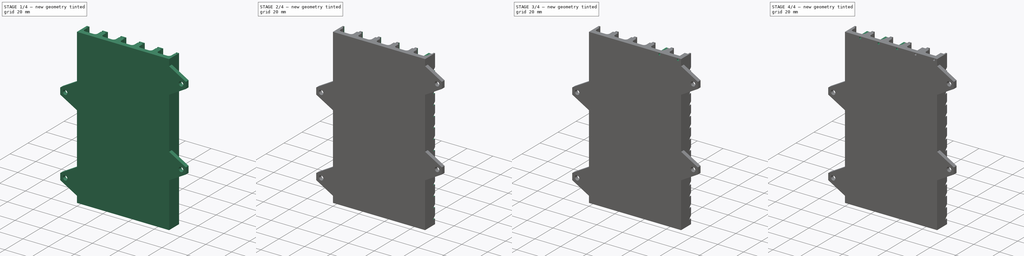
[diagram: build sequence overview — one tinted view per stage of 4, left to right]
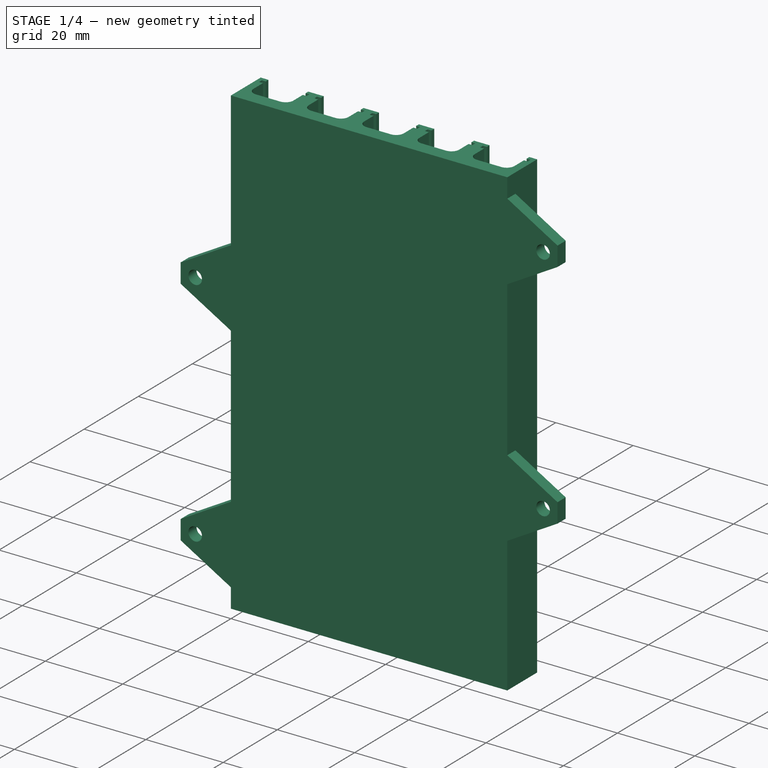
[diagram: stage 1 of 4 — iso view after this stage's code; geometry added in this stage tinted green]
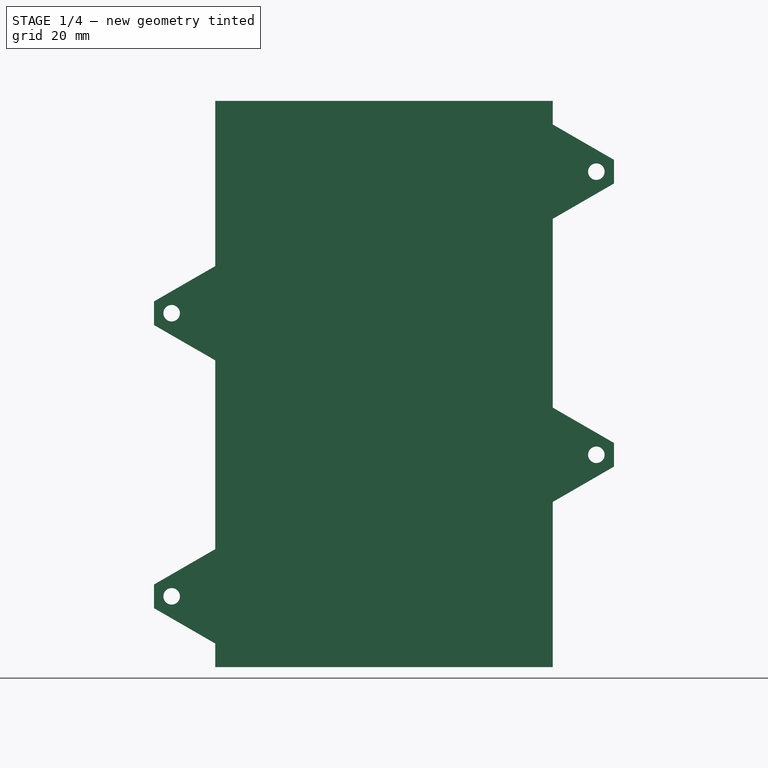
[diagram: stage 1 of 4 — front view after this stage's code; geometry added in this stage tinted green]
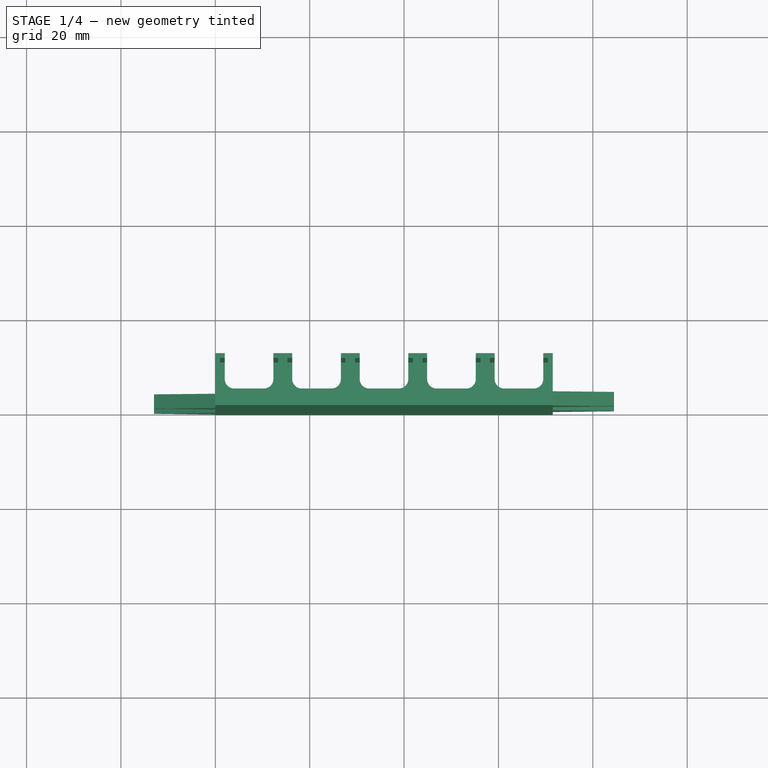
[diagram: stage 1 of 4 — top view after this stage's code; geometry added in this stage tinted green]
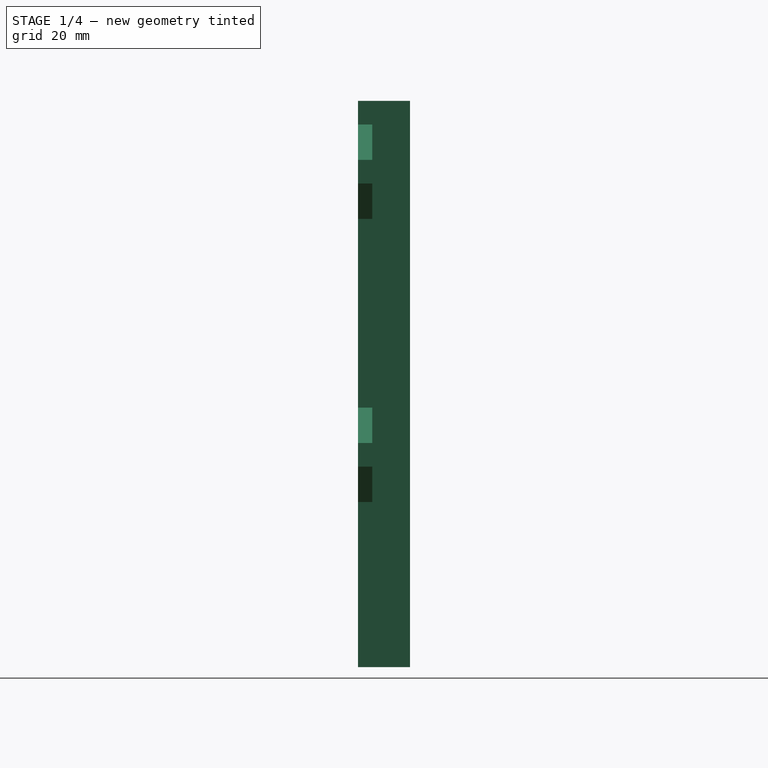
[diagram: stage 1 of 4 — right view after this stage's code; geometry added in this stage tinted green]
FCSTD DOCUMENT  (FreeCAD 0.19R24291 (Git))
Label: 12mm-strip-feeder
License: All rights reserved
LicenseURL: http://en.wikipedia.org/wiki/All_rights_reserved
objects: Sketcher::SketchObject×5, PartDesign::MultiTransform×5, PartDesign::LinearPattern×4, PartDesign::Pad×3, PartDesign::Plane×3, PartDesign::Pocket×2, PartDesign::Chamfer×2, PartDesign::Fillet×1, Part::Part2DObjectPython×1, PartDesign::Body×1
note: 35 computed .brp shape members not serialized (recipe doc carries the construction recipe); baked Part::Feature solids carry a one-line shape summary decoded from their .brp

FEATURE [Sketcher::SketchObject] Sketch
  FullyConstrained = true
  MapMode = 5
  Support = -> [XY_Plane]
  sketch-geometry (64):
    g0: LineSegment StartX=0 StartY=0 StartZ=0 EndX=71.5 EndY=0 EndZ=0
    g1: LineSegment StartX=16.3 StartY=11 StartZ=0 EndX=12.3 EndY=11 EndZ=0
    g2: LineSegment StartX=12.3 StartY=11 StartZ=0 EndX=12.3 EndY=10 EndZ=0
    g3: LineSegment StartX=12.3 StartY=10 StartZ=0 EndX=13.3 EndY=10 EndZ=0
    g4: LineSegment StartX=13.3 StartY=10 StartZ=0 EndX=13.3 EndY=9 EndZ=0
    g5: LineSegment StartX=13.3 StartY=9 StartZ=0 EndX=12.3 EndY=9 EndZ=0
    g6: LineSegment StartX=12.3 StartY=9 StartZ=0 EndX=12.3 EndY=3.5 EndZ=0
    g7: LineSegment StartX=12.3 StartY=3.5 StartZ=0 EndX=2 EndY=3.5 EndZ=0
    g8: LineSegment StartX=2 StartY=3.5 StartZ=0 EndX=2 EndY=9 EndZ=0
    g9: LineSegment StartX=2 StartY=9 StartZ=0 EndX=1 EndY=9 EndZ=0
    g10: LineSegment StartX=1 StartY=9 StartZ=0 EndX=1 EndY=10 EndZ=0
    g11: LineSegment StartX=1 StartY=10 StartZ=0 EndX=2 EndY=10 EndZ=0
    g12: LineSegment StartX=2 StartY=10 StartZ=0 EndX=2 EndY=11 EndZ=0
    g13: LineSegment StartX=2 StartY=11 StartZ=0 EndX=0 EndY=11 EndZ=0
    g14: LineSegment StartX=0 StartY=11 StartZ=0 EndX=0 EndY=0 EndZ=0
    g15: LineSegment StartX=26.6 StartY=11 StartZ=0 EndX=26.6 EndY=10 EndZ=0
    g16: LineSegment StartX=26.6 StartY=10 StartZ=0 EndX=27.6 EndY=10 EndZ=0
    g17: LineSegment StartX=27.6 StartY=10 StartZ=0 EndX=27.6 EndY=9 EndZ=0
    g18: LineSegment StartX=27.6 StartY=9 StartZ=0 EndX=26.6 EndY=9 EndZ=0
    g19: LineSegment StartX=26.6 StartY=9 StartZ=0 EndX=26.6 EndY=3.5 EndZ=0
    g20: LineSegment StartX=26.6 StartY=3.5 StartZ=0 EndX=16.3 EndY=3.5 EndZ=0
    g21: LineSegment StartX=16.3 StartY=3.5 StartZ=0 EndX=16.3 EndY=9 EndZ=0
    g22: LineSegment StartX=16.3 StartY=9 StartZ=0 EndX=15.3 EndY=9 EndZ=0
    g23: LineSegment StartX=15.3 StartY=9 StartZ=0 EndX=15.3 EndY=10 EndZ=0
    g24: LineSegment StartX=15.3 StartY=10 StartZ=0 EndX=16.3 EndY=10 EndZ=0
    g25: LineSegment StartX=16.3 StartY=10 StartZ=0 EndX=16.3 EndY=11 EndZ=0
    g26: LineSegment StartX=44.9 StartY=11 StartZ=0 EndX=40.9 EndY=11 EndZ=0
    g27: LineSegment StartX=40.9 StartY=11 StartZ=0 EndX=40.9 EndY=10 EndZ=0
    g28: LineSegment StartX=40.9 StartY=10 StartZ=0 EndX=41.9 EndY=10 EndZ=0
    g29: LineSegment StartX=41.9 StartY=10 StartZ=0 EndX=41.9 EndY=9 EndZ=0
    g30: LineSegment StartX=41.9 StartY=9 StartZ=0 EndX=40.9 EndY=9 EndZ=0
    g31: LineSegment StartX=40.9 StartY=9 StartZ=0 EndX=40.9 EndY=3.5 EndZ=0
    g32: LineSegment StartX=44.9 StartY=3.5 StartZ=0 EndX=44.9 EndY=9 EndZ=0
    g33: LineSegment StartX=44.9 StartY=9 StartZ=0 EndX=43.9 EndY=9 EndZ=0
    g34: LineSegment StartX=43.9 StartY=9 StartZ=0 EndX=43.9 EndY=10 EndZ=0
    g35: LineSegment StartX=43.9 StartY=10 StartZ=0 EndX=44.9 EndY=10 EndZ=0
    g36: LineSegment StartX=44.9 StartY=10 StartZ=0 EndX=44.9 EndY=11 EndZ=0
    g37: LineSegment StartX=30.6 StartY=3.5 StartZ=0 EndX=30.6 EndY=9 EndZ=0
    g38: LineSegment StartX=30.6 StartY=9 StartZ=0 EndX=29.6 EndY=9 EndZ=0
    g39: LineSegment StartX=29.6 StartY=9 StartZ=0 EndX=29.6 EndY=10 EndZ=0
    g40: LineSegment StartX=29.6 StartY=10 StartZ=0 EndX=30.6 EndY=10 EndZ=0
    g41: LineSegment StartX=30.6 StartY=10 StartZ=0 EndX=30.6 EndY=11 EndZ=0
    g42: LineSegment StartX=26.6 StartY=11 StartZ=0 EndX=30.6 EndY=11 EndZ=0
    g43: LineSegment StartX=30.6 StartY=3.5 StartZ=0 EndX=40.9 EndY=3.5 EndZ=0
    g44: LineSegment StartX=55.2 StartY=11 StartZ=0 EndX=55.2 EndY=10 EndZ=0
    g45: LineSegment StartX=55.2 StartY=10 StartZ=0 EndX=56.2 EndY=10 EndZ=0
    g46: LineSegment StartX=56.2 StartY=10 StartZ=0 EndX=56.2 EndY=9 EndZ=0
    g47: LineSegment StartX=56.2 StartY=9 StartZ=0 EndX=55.2 EndY=9 EndZ=0
    g48: LineSegment StartX=55.2 StartY=9 StartZ=0 EndX=55.2 EndY=3.5 EndZ=0
    g49: LineSegment StartX=44.9 StartY=3.5 StartZ=0 EndX=55.2 EndY=3.5 EndZ=0
    g50: LineSegment StartX=55.2 StartY=11 StartZ=0 EndX=59.2 EndY=11 EndZ=0
    g51: LineSegment StartX=59.2 StartY=3.5 StartZ=0 EndX=59.2 EndY=9 EndZ=0
    g52: LineSegment StartX=59.2 StartY=9 StartZ=0 EndX=58.2 EndY=9 EndZ=0
    g53: LineSegment StartX=58.2 StartY=9 StartZ=0 EndX=58.2 EndY=10 EndZ=0
    g54: LineSegment StartX=58.2 StartY=10 StartZ=0 EndX=59.2 EndY=10 EndZ=0
    g55: LineSegment StartX=59.2 StartY=10 StartZ=0 EndX=59.2 EndY=11 EndZ=0
    g56: LineSegment StartX=69.5 StartY=11 StartZ=0 EndX=69.5 EndY=10 EndZ=0
    g57: LineSegment StartX=69.5 StartY=9 StartZ=0 EndX=69.5 EndY=3.5 EndZ=0
    g58: LineSegment StartX=59.2 StartY=3.5 StartZ=0 EndX=69.5 EndY=3.5 EndZ=0
    g59: LineSegment StartX=69.5 StartY=11 StartZ=0 EndX=71.5 EndY=11 EndZ=0
    g60: LineSegment StartX=69.5 StartY=10 StartZ=0 EndX=70.5 EndY=10 EndZ=0
    g61: LineSegment StartX=70.5 StartY=10 StartZ=0 EndX=70.5 EndY=9 EndZ=0
    g62: LineSegment StartX=70.5 StartY=9 StartZ=0 EndX=69.5 EndY=9 EndZ=0
    g63: LineSegment StartX=71.5 StartY=11 StartZ=0 EndX=71.5 EndY=0 EndZ=0
  constraints (191):
    c: Coincident(g-1,g0)
    c: PointOnObject(g0,g-1)
    c: Horizontal(g1)
    c: Vertical(g2)
    c: Coincident(g2,g3)
    c: Horizontal(g3)
    c: Coincident(g3,g4)
    c: Vertical(g4)
    c: Coincident(g4,g5)
    c: Horizontal(g5)
    c: Coincident(g5,g6)
    c: Vertical(g6)
    c: Coincident(g6,g7)
    c: Horizontal(g7)
    c: Coincident(g7,g8)
    c: Vertical(g8)
    c: Coincident(g8,g9)
    c: Horizontal(g9)
    c: Coincident(g9,g10)
    c: Vertical(g10)
    c: Coincident(g10,g11)
    c: Coincident(g11,g12)
    c: Vertical(g12)
    c: Coincident(g12,g13)
    c: PointOnObject(g13,g-2)
    c: Horizontal(g13)
    c: Coincident(g13,g14)
    c: Coincident(g14,g0)
    c: Horizontal(g11)
    c: DistanceY(g0,g10) = 10
    c: DistanceY(g0,g13) = 11
    c: PointOnObject(g1,g13)
    c: PointOnObject(g2,g11)
    c: DistanceY(g10,g10) = 1
    c: PointOnObject(g5,g9)
    c: PointOnObject(g11,g8)
    c: PointOnObject(g2,g6)
    c: DistanceX(g10,g12) = 1
    c: DistanceY(g7,g11) = 6.5
    c: DistanceX(g9,g4) = 12.3
    c: DistanceX(g5,g5) = 1
    c: DistanceX(g13,g13) = 2
    c: Vertical(g15)
    c: Coincident(g15,g16)
    c: Horizontal(g16)
    c: Coincident(g16,g17)
    c: Vertical(g17)
    c: Coincident(g17,g18)
    c: Horizontal(g18)
    c: Coincident(g18,g19)
    c: Vertical(g19)
    c: Coincident(g19,g20)
    c: Horizontal(g20)
    c: Coincident(g20,g21)
    c: Vertical(g21)
    c: Coincident(g21,g22)
    c: Horizontal(g22)
    c: Coincident(g22,g23)
    c: Vertical(g23)
    c: Coincident(g23,g24)
    c: Coincident(g24,g25)
    c: Vertical(g25)
    c: Horizontal(g24)
    c: PointOnObject(g15,g24)
    c: Equal(g10,g23) = 1
    c: PointOnObject(g18,g22)
    c: PointOnObject(g24,g21)
    c: PointOnObject(g15,g19)
    c: DistanceX(g23,g25) = 1
    c: DistanceY(g20,g24) = 6.5
    c: DistanceX(g22,g17) = 12.3
    c: Equal(g5,g18) = 1
    c: Coincident(g1,g2)
    c: Coincident(g1,g25)
    c: PointOnObject(g23,g3)
    c: PointOnObject(g15,g1)
    c: DistanceX(g1,g1) = 4
    c: Horizontal(g26)
    c: Vertical(g27)
    c: Coincident(g27,g28)
    c: Horizontal(g28)
    c: Coincident(g28,g29)
    c: Vertical(g29)
    c: Coincident(g29,g30)
    c: Horizontal(g30)
    c: Coincident(g30,g31)
    c: Vertical(g31)
    c: PointOnObject(g27,g31)
    c: Equal(g5,g30) = 1
    c: Vertical(g32)
    c: Coincident(g32,g33)
    c: Horizontal(g33)
    c: Coincident(g33,g34)
    c: Vertical(g34)
    c: Coincident(g34,g35)
    c: Coincident(g35,g36)
    c: Vertical(g36)
    c: Horizontal(g35)
    c: PointOnObject(g35,g32)
    c: DistanceX(g34,g36) = 1
    c: Coincident(g26,g27)
    c: Coincident(g26,g36)
    c: PointOnObject(g34,g28)
    c: Equal(g1,g26) = 4
    c: Vertical(g37)
    c: Coincident(g37,g38)
    c: Horizontal(g38)
    c: Coincident(g38,g39)
    c: Vertical(g39)
    c: Coincident(g39,g40)
    c: Coincident(g40,g41)
    c: Vertical(g41)
    c: Horizontal(g40)
    c: PointOnObject(g40,g37)
    c: DistanceX(g39,g41) = 1
    c: Coincident(g42,g15)
    c: Coincident(g42,g41)
    c: Horizontal(g42)
    c: Coincident(g43,g37)
    c: Coincident(g43,g31)
    c: Horizontal(g43)
    c: PointOnObject(g37,g20)
    c: PointOnObject(g38,g18)
    c: PointOnObject(g39,g16)
    c: PointOnObject(g30,g38)
    c: PointOnObject(g27,g40)
    c: DistanceX(g39,g28) = 12.3
    c: DistanceX(g42,g42) = 4
    c: Vertical(g44)
    c: Coincident(g44,g45)
    c: Horizontal(g45)
    c: Coincident(g45,g46)
    c: Vertical(g46)
    c: Coincident(g46,g47)
    c: Horizontal(g47)
    c: Coincident(g47,g48)
    c: Vertical(g48)
    c: PointOnObject(g44,g48)
    c: Coincident(g49,g32)
    c: Coincident(g49,g48)
    c: Coincident(g50,g44)
    c: Horizontal(g50)
    c: Horizontal(g49)
    c: PointOnObject(g32,g43)
    c: PointOnObject(g33,g30)
    c: PointOnObject(g47,g33)
    c: PointOnObject(g44,g35)
    c: PointOnObject(g44,g26)
    c: PointOnObject(g26,g42)
    c: DistanceX(g34,g45) = 12.3
    c: DistanceX(g45,g45) = 1
    c: Vertical(g51)
    c: Coincident(g51,g52)
    c: Horizontal(g52)
    c: Coincident(g52,g53)
    c: Vertical(g53)
    c: Coincident(g53,g54)
    c: Coincident(g54,g55)
    c: Vertical(g55)
    c: Horizontal(g54)
    c: PointOnObject(g54,g51)
    c: DistanceX(g53,g55) = 1
    c: Vertical(g56)
    c: Vertical(g57)
    c: PointOnObject(g56,g57)
    c: Coincident(g58,g51)
    c: Coincident(g58,g57)
    c: Coincident(g59,g56)
    c: Horizontal(g59)
    c: Horizontal(g58)
    c: PointOnObject(g57,g52)
    c: PointOnObject(g56,g54)
    c: PointOnObject(g53,g45)
    c: PointOnObject(g52,g47)
    c: PointOnObject(g51,g49)
    c: Coincident(g50,g55)
    c: DistanceX(g50,g50) = 4
    c: PointOnObject(g56,g50)
    c: Coincident(g56,g60)
    c: Horizontal(g60)
    c: Coincident(g60,g61)
    c: Vertical(g61)
    c: Coincident(g61,g62)
    c: Coincident(g62,g57)
    c: Horizontal(g62)
    c: DistanceX(g53,g60) = 12.3
    c: DistanceX(g60,g60) = 1
    c: Coincident(g63,g59)
    c: Coincident(g63,g0)
    c: Vertical(g63)
    c: DistanceX(g59,g59) = 2
FEATURE [PartDesign::Pad] Pad
  Direction = (1,1,1)
  Length = 120
  Length2 = 100
  Profile = -> Sketch
  Type = 0
FEATURE [Sketcher::SketchObject] Sketch001
  FullyConstrained = true
  MapMode = 5
  Placement = pos=(0,0,0) rot=(1,0,0;1.5708rad)
  Support = -> [XZ_Plane]
  sketch-geometry (28):
    g0: Circle CenterX=-9.25 CenterY=15 CenterZ=0 NormalX=0 NormalY=0 NormalZ=1 AngleXU=0 Radius=1.75
    g1: Circle CenterX=-9.25 CenterY=75 CenterZ=0 NormalX=0 NormalY=0 NormalZ=1 AngleXU=0 Radius=1.75
    g2: Circle CenterX=80.75 CenterY=105 CenterZ=0 NormalX=0 NormalY=0 NormalZ=1 AngleXU=0 Radius=1.75
    g3: Circle CenterX=80.75 CenterY=45 CenterZ=0 NormalX=0 NormalY=0 NormalZ=1 AngleXU=0 Radius=1.75
    g4: LineSegment StartX=-9.25 StartY=75 StartZ=0 EndX=80.75 EndY=75 EndZ=0
    g5: LineSegment StartX=80.75 StartY=75 StartZ=0 EndX=80.75 EndY=15 EndZ=0
    g6: LineSegment StartX=80.75 StartY=15 StartZ=0 EndX=-9.25 EndY=15 EndZ=0
    g7: LineSegment StartX=-9.25 StartY=15 StartZ=0 EndX=-9.25 EndY=75 EndZ=0
    g8: LineSegment StartX=0 StartY=4.99445 StartZ=0 EndX=-13 EndY=12.5 EndZ=0
    g9: LineSegment StartX=-13 StartY=12.5 StartZ=0 EndX=-13 EndY=17.5 EndZ=0
    g10: LineSegment StartX=-13 StartY=17.5 StartZ=0 EndX=0 EndY=25.0056 EndZ=0
    g11: LineSegment StartX=0 StartY=25.0056 StartZ=0 EndX=0 EndY=4.99445 EndZ=0
    g12: LineSegment StartX=0 StartY=65.0056 StartZ=0 EndX=-13 EndY=72.5 EndZ=0
    g13: LineSegment StartX=-13 StartY=72.5 StartZ=0 EndX=-13 EndY=77.5 EndZ=0
    g14: LineSegment StartX=-13 StartY=77.5 StartZ=0 EndX=0 EndY=84.9944 EndZ=0
    g15: LineSegment StartX=0 StartY=84.9944 StartZ=0 EndX=0 EndY=65.0056 EndZ=0
    g16: LineSegment StartX=71.5 StartY=34.9944 StartZ=0 EndX=84.5 EndY=42.5 EndZ=0
    g17: LineSegment StartX=84.5 StartY=42.5 StartZ=0 EndX=84.5 EndY=47.5 EndZ=0
    g18: LineSegment StartX=84.5 StartY=47.5 StartZ=0 EndX=71.5 EndY=55.0056 EndZ=0
    g19: LineSegment StartX=71.5 StartY=55.0056 StartZ=0 EndX=71.5 EndY=34.9944 EndZ=0
    g20: LineSegment StartX=71.5 StartY=94.9944 StartZ=0 EndX=84.5 EndY=102.5 EndZ=0
    g21: LineSegment StartX=84.5 StartY=102.5 StartZ=0 EndX=84.5 EndY=107.5 EndZ=0
    g22: LineSegment StartX=84.5 StartY=107.5 StartZ=0 EndX=71.5 EndY=115.006 EndZ=0
    g23: LineSegment StartX=71.5 StartY=115.006 StartZ=0 EndX=71.5 EndY=94.9944 EndZ=0
    g24: LineSegment StartX=-9.25 StartY=45 StartZ=0 EndX=80.75 EndY=45 EndZ=0
    g25: LineSegment StartX=80.75 StartY=45 StartZ=0 EndX=80.75 EndY=105 EndZ=0
    g26: LineSegment StartX=80.75 StartY=105 StartZ=0 EndX=-9.25 EndY=105 EndZ=0
    g27: LineSegment StartX=-9.25 StartY=105 StartZ=0 EndX=-9.25 EndY=45 EndZ=0
  constraints (79):
    c: Diameter(g2) = 3.5
    c: Diameter(g1) = 3.5
    c: Diameter(g0) = 3.5
    c: Diameter(g3) = 3.5
    c: Horizontal(g4)
    c: Horizontal(g6)
    c: Vertical(g5)
    c: Vertical(g7)
    c: DistanceX(g4,g4) = 90
    c: DistanceY(g7,g7) = 60
    c: Coincident(g1,g4)
    c: Coincident(g1,g7)
    c: Coincident(g7,g6)
    c: Coincident(g0,g6)
    c: DistanceX(g0,g-1) = 9.25
    c: DistanceY(g-1,g0) = 15
    c: Coincident(g8,g9)
    c: Coincident(g9,g10)
    c: Coincident(g10,g11)
    c: Coincident(g11,g8)
    c: Vertical(g11)
    c: Angle(g10,g11) = 1.0472
    c: Angle(g11,g8) = 1.0472
    c: DistanceX(g8,g8) = 13
    c: DistanceY(g9,g9) = 5
    c: PointOnObject(g12,g-2)
    c: Coincident(g12,g13)
    c: Vertical(g13)
    c: Coincident(g13,g14)
    c: PointOnObject(g14,g-2)
    c: Coincident(g14,g15)
    c: Coincident(g15,g12)
    c: DistanceY(g13,g13) = 5
    c: DistanceX(g13,g14) = 13
    c: DistanceY(g8,g14) = 80
    c: Coincident(g16,g17)
    c: Vertical(g17)
    c: Coincident(g17,g18)
    c: Coincident(g18,g19)
    c: Coincident(g19,g16)
    c: Vertical(g19)
    c: Coincident(g20,g21)
    c: Vertical(g21)
    c: Coincident(g21,g22)
    c: Coincident(g22,g23)
    c: Coincident(g23,g20)
    c: Vertical(g23)
    c: DistanceX(g20,g2) = 9.25
    c: DistanceX(g20,g20) = 13
    c: DistanceX(g18,g3) = 9.25
    c: DistanceY(g21,g21) = 5
    c: DistanceY(g16,g3) = 2.5
    c: DistanceY(g20,g2) = 2.5
    c: Angle(g16,g19) = 1.0472
    c: Angle(g19,g18) = 1.0472
    c: DistanceY(g17,g17) = 5
    c: DistanceX(g18,g17) = 13
    c: Equal(g14,g12)
    c: DistanceY(g1,g13) = 2.5
    c: Angle(g23,g22) = 1.0472
    c: Angle(g20,g23) = 1.0472
    c: Coincident(g24,g25)
    c: Coincident(g25,g26)
    c: Coincident(g26,g27)
    c: Coincident(g27,g24)
    c: Horizontal(g24)
    c: Horizontal(g26)
    c: Vertical(g25)
    c: Vertical(g27)
    c: PointOnObject(g24,g7)
    c: DistanceY(g27,g27) = 60
    c: DistanceY(g24,g1) = 30
    c: PointOnObject(g24,g5)
    c: Coincident(g5,g6)
    c: Coincident(g3,g24)
    c: Coincident(g2,g25)
    c: Coincident(g4,g5)
    c: PointOnObject(g8,g-2)
    c: Symmetric(g9,g8,g6)
FEATURE [PartDesign::Pad] Pad001
  BaseFeature = -> Pad
  Direction = (1,1,1)
  Length = 3
  Length2 = 100
  Profile = -> Sketch001
  Reversed = true
  Type = 0
FEATURE [PartDesign::Fillet] Fillet
  Base = -> Pad001 [Edge149,Edge137,Edge209,Edge197,Edge185,Edge148,Edge136,Edge208,Edge196,Edge184]
  BaseFeature = -> Pad001
  Radius = 2
  SupportTransform = false
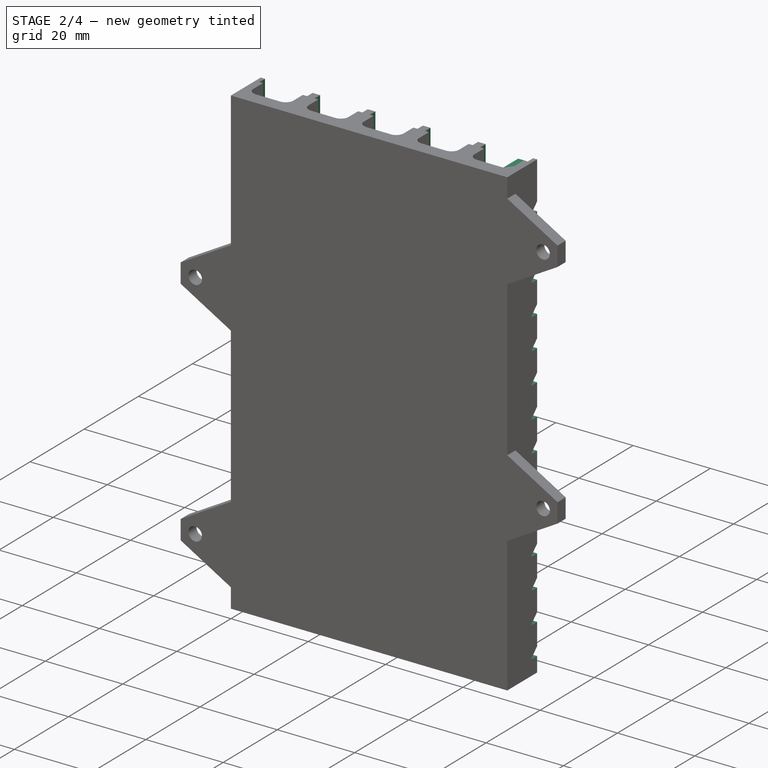
[diagram: stage 2 of 4 — iso view after this stage's code; geometry added in this stage tinted green]
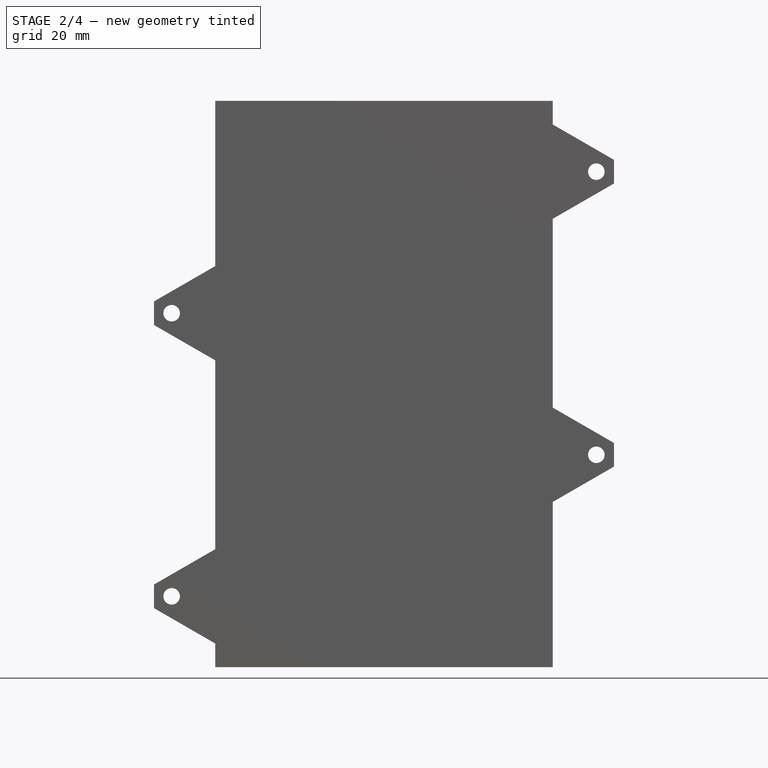
[diagram: stage 2 of 4 — front view after this stage's code; geometry added in this stage tinted green]
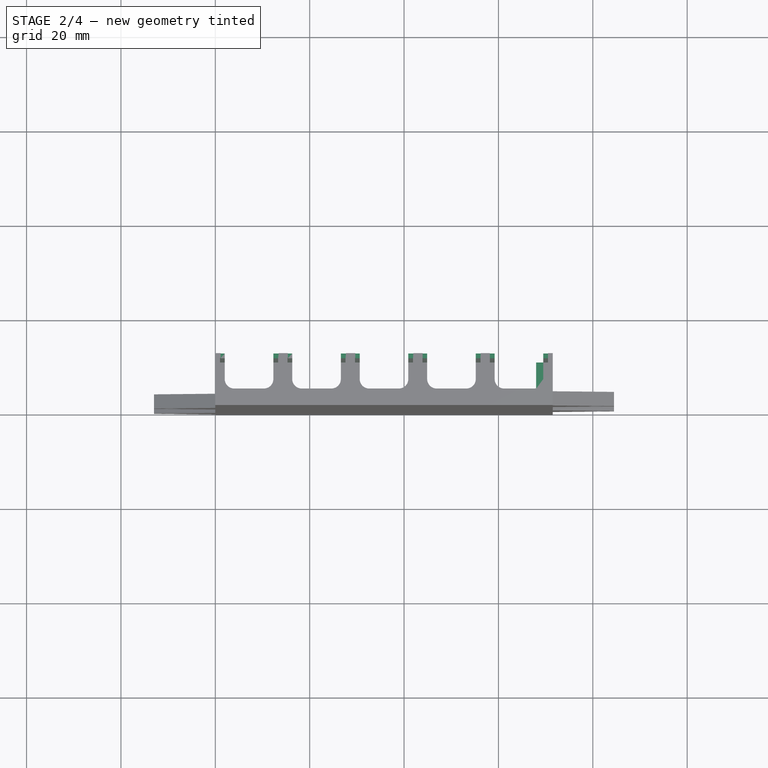
[diagram: stage 2 of 4 — top view after this stage's code; geometry added in this stage tinted green]
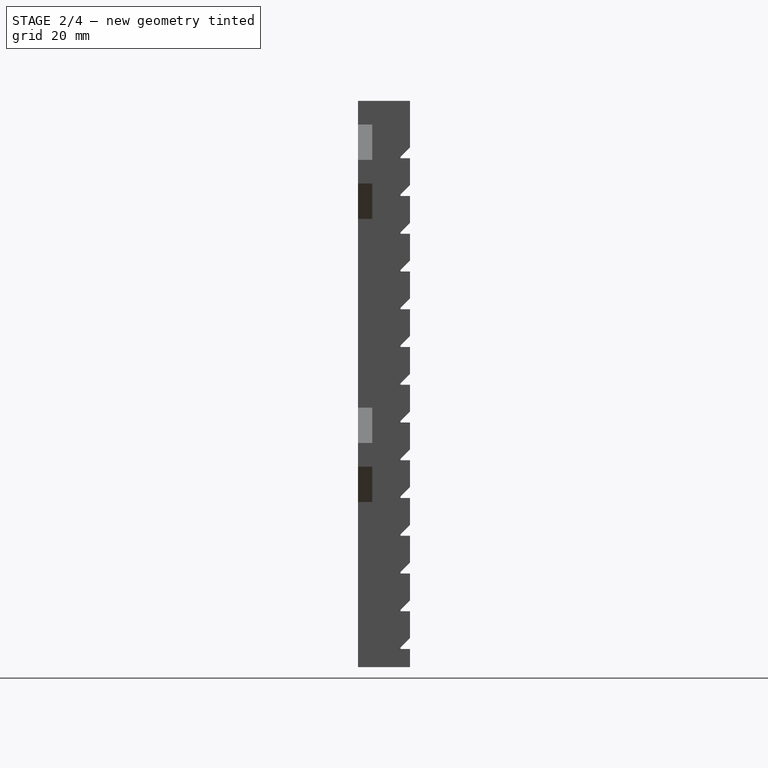
[diagram: stage 2 of 4 — right view after this stage's code; geometry added in this stage tinted green]
FEATURE [Part::Part2DObjectPython] ShapeString003  label="PN"  # Draft 2D object (typed FeaturePython)
  FontFile = ../../lib/fonts/RobotoMono-VariableFont_weight.ttf
  Size = 5
  String = FDM-9003-01
  Tracking = 0
FEATURE [PartDesign::Plane] DatumPlane001
  Length = 60
  MapMode = 5
  Placement = pos=(0,11,0) rot=(0,0.707107,0.707107;3.14159rad)
  ResizeMode = 0
  Support = -> [Fillet]
  Width = 60
FEATURE [Sketcher::SketchObject] Sketch002
  FullyConstrained = true
  MapMode = 5
  Placement = pos=(0,11,0) rot=(0,0.707107,0.707107;3.14159rad)
  Support = -> [DatumPlane001]
  sketch-geometry (107):
    g0: LineSegment StartX=-71.5 StartY=0 StartZ=0 EndX=0 EndY=0 EndZ=0
    g1: LineSegment StartX=-71.5 StartY=4 StartZ=0 EndX=0 EndY=4 EndZ=0
    g2: LineSegment StartX=-71.5 StartY=4.15 StartZ=0 EndX=0 EndY=4.15 EndZ=0
    g3: LineSegment StartX=-71.5 StartY=3.85 StartZ=0 EndX=0 EndY=3.85 EndZ=0
    g4: LineSegment StartX=-71.5 StartY=3.85 StartZ=0 EndX=-71.5 EndY=4.15 EndZ=0
    g5: LineSegment StartX=0 StartY=4.15 StartZ=0 EndX=0 EndY=3.85 EndZ=0
    g6: LineSegment StartX=-71.5 StartY=12 StartZ=0 EndX=0 EndY=12 EndZ=0
    g7: LineSegment StartX=-71.5 StartY=12.15 StartZ=0 EndX=0 EndY=12.15 EndZ=0
    g8: LineSegment StartX=-71.5 StartY=11.85 StartZ=0 EndX=0 EndY=11.85 EndZ=0
    g9: LineSegment StartX=-71.5 StartY=11.85 StartZ=0 EndX=-71.5 EndY=12.15 EndZ=0
    g10: LineSegment StartX=6e-16 StartY=12.15 StartZ=0 EndX=6e-16 EndY=11.85 EndZ=0
    g11: LineSegment StartX=-71.5 StartY=4 StartZ=0 EndX=-71.5 EndY=12 EndZ=0
    g12: LineSegment StartX=-71.5 StartY=20 StartZ=0 EndX=0 EndY=20 EndZ=0
    g13: LineSegment StartX=-71.5 StartY=20.15 StartZ=0 EndX=0 EndY=20.15 EndZ=0
    g14: LineSegment StartX=-71.5 StartY=19.85 StartZ=0 EndX=0 EndY=19.85 EndZ=0
    g15: LineSegment StartX=-71.5 StartY=19.85 StartZ=0 EndX=-71.5 EndY=20.15 EndZ=0
    g16: LineSegment StartX=1.2e-15 StartY=20.15 StartZ=0 EndX=1.2e-15 EndY=19.85 EndZ=0
    g17: LineSegment StartX=-71.5 StartY=12 StartZ=0 EndX=-71.5 EndY=20 EndZ=0
    g18: LineSegment StartX=-71.5 StartY=28 StartZ=0 EndX=0 EndY=28 EndZ=0
    g19: LineSegment StartX=-71.5 StartY=28.15 StartZ=0 EndX=0 EndY=28.15 EndZ=0
    g20: LineSegment StartX=-71.5 StartY=27.85 StartZ=0 EndX=0 EndY=27.85 EndZ=0
    g21: LineSegment StartX=-71.5 StartY=27.85 StartZ=0 EndX=-71.5 EndY=28.15 EndZ=0
    g22: LineSegment StartX=1.8e-15 StartY=28.15 StartZ=0 EndX=1.8e-15 EndY=27.85 EndZ=0
    g23: LineSegment StartX=-71.5 StartY=20 StartZ=0 EndX=-71.5 EndY=28 EndZ=0
    g24: LineSegment StartX=-71.5 StartY=36 StartZ=0 EndX=0 EndY=36 EndZ=0
    g25: LineSegment StartX=-71.5 StartY=36.15 StartZ=0 EndX=0 EndY=36.15 EndZ=0
    g26: LineSegment StartX=-71.5 StartY=35.85 StartZ=0 EndX=0 EndY=35.85 EndZ=0
    g27: LineSegment StartX=-71.5 StartY=35.85 StartZ=0 EndX=-71.5 EndY=36.15 EndZ=0
    g28: LineSegment StartX=2.5e-15 StartY=36.15 StartZ=0 EndX=2.5e-15 EndY=35.85 EndZ=0
    g29: LineSegment StartX=-71.5 StartY=28 StartZ=0 EndX=-71.5 EndY=36 EndZ=0
    g30: LineSegment StartX=-71.5 StartY=44 StartZ=0 EndX=0 EndY=44 EndZ=0
    g31: LineSegment StartX=-71.5 StartY=44.15 StartZ=0 EndX=0 EndY=44.15 EndZ=0
    g32: LineSegment StartX=-71.5 StartY=43.85 StartZ=0 EndX=0 EndY=43.85 EndZ=0
    g33: LineSegment StartX=-71.5 StartY=43.85 StartZ=0 EndX=-71.5 EndY=44.15 EndZ=0
    g34: LineSegment StartX=3.1e-15 StartY=44.15 StartZ=0 EndX=3.1e-15 EndY=43.85 EndZ=0
    g35: LineSegment StartX=-71.5 StartY=36 StartZ=0 EndX=-71.5 EndY=44 EndZ=0
    g36: LineSegment StartX=-71.5 StartY=52 StartZ=0 EndX=0 EndY=52 EndZ=0
    g37: LineSegment StartX=-71.5 StartY=52.15 StartZ=0 EndX=0 EndY=52.15 EndZ=0
    g38: LineSegment StartX=-71.5 StartY=51.85 StartZ=0 EndX=0 EndY=51.85 EndZ=0
    g39: LineSegment StartX=-71.5 StartY=51.85 StartZ=0 EndX=-71.5 EndY=52.15 EndZ=0
    g40: LineSegment StartX=3.7e-15 StartY=52.15 StartZ=0 EndX=3.7e-15 EndY=51.85 EndZ=0
    g41: LineSegment StartX=-71.5 StartY=44 StartZ=0 EndX=-71.5 EndY=52 EndZ=0
    g42: LineSegment StartX=-71.5 StartY=60 StartZ=0 EndX=0 EndY=60 EndZ=0
    g43: LineSegment StartX=-71.5 StartY=60.15 StartZ=0 EndX=0 EndY=60.15 EndZ=0
    g44: LineSegment StartX=-71.5 StartY=59.85 StartZ=0 EndX=0 EndY=59.85 EndZ=0
    g45: LineSegment StartX=-71.5 StartY=59.85 StartZ=0 EndX=-71.5 EndY=60.15 EndZ=0
    g46: LineSegment StartX=4.3e-15 StartY=60.15 StartZ=0 EndX=4.3e-15 EndY=59.85 EndZ=0
    g47: LineSegment StartX=-71.5 StartY=52 StartZ=0 EndX=-71.5 EndY=60 EndZ=0
    g48: LineSegment StartX=-71.5 StartY=68 StartZ=0 EndX=0 EndY=68 EndZ=0
    g49: LineSegment StartX=-71.5 StartY=68.15 StartZ=0 EndX=0 EndY=68.15 EndZ=0
    g50: LineSegment StartX=-71.5 StartY=67.85 StartZ=0 EndX=0 EndY=67.85 EndZ=0
    g51: LineSegment StartX=-71.5 StartY=67.85 StartZ=0 EndX=-71.5 EndY=68.15 EndZ=0
    g52: LineSegment StartX=4.9e-15 StartY=68.15 StartZ=0 EndX=4.9e-15 EndY=67.85 EndZ=0
    g53: LineSegment StartX=-71.5 StartY=60 StartZ=0 EndX=-71.5 EndY=68 EndZ=0
    g54: LineSegment StartX=-71.5 StartY=76 StartZ=0 EndX=0 EndY=76 EndZ=0
    g55: LineSegment StartX=-71.5 StartY=76.15 StartZ=0 EndX=0 EndY=76.15 EndZ=0
    g56: LineSegment StartX=-71.5 StartY=75.85 StartZ=0 EndX=0 EndY=75.85 EndZ=0
    g57: LineSegment StartX=-71.5 StartY=75.85 StartZ=0 EndX=-71.5 EndY=76.15 EndZ=0
    g58: LineSegment StartX=5.5e-15 StartY=76.15 StartZ=0 EndX=5.5e-15 EndY=75.85 EndZ=0
    g59: LineSegment StartX=-71.5 StartY=68 StartZ=0 EndX=-71.5 EndY=76 EndZ=0
    g60: LineSegment StartX=-71.5 StartY=84 StartZ=0 EndX=0 EndY=84 EndZ=0
    g61: LineSegment StartX=-71.5 StartY=84.15 StartZ=0 EndX=0 EndY=84.15 EndZ=0
    g62: LineSegment StartX=-71.5 StartY=83.85 StartZ=0 EndX=0 EndY=83.85 EndZ=0
    g63: LineSegment StartX=-71.5 StartY=83.85 StartZ=0 EndX=-71.5 EndY=84.15 EndZ=0
    g64: LineSegment StartX=6.1e-15 StartY=84.15 StartZ=0 EndX=6.1e-15 EndY=83.85 EndZ=0
    g65: LineSegment StartX=-71.5 StartY=76 StartZ=0 EndX=-71.5 EndY=84 EndZ=0
    g66: LineSegment StartX=-71.5 StartY=92 StartZ=0 EndX=0 EndY=92 EndZ=0
    g67: LineSegment StartX=-71.5 StartY=92.15 StartZ=0 EndX=0 EndY=92.15 EndZ=0
    g68: LineSegment StartX=-71.5 StartY=91.85 StartZ=0 EndX=0 EndY=91.85 EndZ=0
    g69: LineSegment StartX=-71.5 StartY=91.85 StartZ=0 EndX=-71.5 EndY=92.15 EndZ=0
    g70: LineSegment StartX=6.7e-15 StartY=92.15 StartZ=0 EndX=6.7e-15 EndY=91.85 EndZ=0
    g71: LineSegment StartX=-71.5 StartY=84 StartZ=0 EndX=-71.5 EndY=92 EndZ=0
    g72: LineSegment StartX=-71.5 StartY=100 StartZ=0 EndX=1.42e-14 EndY=100 EndZ=0
    g73: LineSegment StartX=-71.5 StartY=100.15 StartZ=0 EndX=1.42e-14 EndY=100.15 EndZ=0
    g74: LineSegment StartX=-71.5 StartY=99.85 StartZ=0 EndX=1.42e-14 EndY=99.85 EndZ=0
    g75: LineSegment StartX=-71.5 StartY=99.85 StartZ=0 EndX=-71.5 EndY=100.15 EndZ=0
    g76: LineSegment StartX=7.4e-15 StartY=100.15 StartZ=0 EndX=7.4e-15 EndY=99.85 EndZ=0
    g77: LineSegment StartX=-71.5 StartY=92 StartZ=0 EndX=-71.5 EndY=100 EndZ=0
    g78: LineSegment StartX=-71.5 StartY=108 StartZ=0 EndX=1.42e-14 EndY=108 EndZ=0
    g79: LineSegment StartX=-71.5 StartY=108.15 StartZ=0 EndX=1.42e-14 EndY=108.15 EndZ=0
    g80: LineSegment StartX=-71.5 StartY=107.85 StartZ=0 EndX=1.42e-14 EndY=107.85 EndZ=0
    g81: LineSegment StartX=-71.5 StartY=107.85 StartZ=0 EndX=-71.5 EndY=108.15 EndZ=0
    g82: LineSegment StartX=8e-15 StartY=108.15 StartZ=0 EndX=8e-15 EndY=107.85 EndZ=0
    g83: LineSegment StartX=-71.5 StartY=100 StartZ=0 EndX=-71.5 EndY=108 EndZ=0
    g84: LineSegment StartX=-70.5 StartY=120 StartZ=0 EndX=-58.2 EndY=120 EndZ=0
    g85: LineSegment StartX=-58.2 StartY=120 StartZ=0 EndX=-58.2 EndY=115.5 EndZ=0
    g86: LineSegment StartX=-58.2 StartY=115.5 StartZ=0 EndX=-70.5 EndY=115.5 EndZ=0
    g87: LineSegment StartX=-70.5 StartY=115.5 StartZ=0 EndX=-70.5 EndY=120 EndZ=0
    g88: LineSegment StartX=-56.23 StartY=120 StartZ=0 EndX=-43.93 EndY=120 EndZ=0
    g89: LineSegment StartX=-43.93 StartY=120 StartZ=0 EndX=-43.93 EndY=115.5 EndZ=0
    g90: LineSegment StartX=-43.93 StartY=115.5 StartZ=0 EndX=-56.23 EndY=115.5 EndZ=0
    g91: LineSegment StartX=-56.23 StartY=115.5 StartZ=0 EndX=-56.23 EndY=120 EndZ=0
    g92: LineSegment StartX=-70.5 StartY=120 StartZ=0 EndX=-56.23 EndY=120 EndZ=0
    g93: LineSegment StartX=-41.96 StartY=120 StartZ=0 EndX=-29.66 EndY=120 EndZ=0
    g94: LineSegment StartX=-29.66 StartY=120 StartZ=0 EndX=-29.66 EndY=115.5 EndZ=0
    g95: LineSegment StartX=-29.66 StartY=115.5 StartZ=0 EndX=-41.96 EndY=115.5 EndZ=0
    g96: LineSegment StartX=-41.96 StartY=115.5 StartZ=0 EndX=-41.96 EndY=120 EndZ=0
    g97: LineSegment StartX=-56.23 StartY=120 StartZ=0 EndX=-41.96 EndY=120 EndZ=0
    g98: LineSegment StartX=-27.69 StartY=120 StartZ=0 EndX=-15.39 EndY=120 EndZ=0
    g99: LineSegment StartX=-15.39 StartY=120 StartZ=0 EndX=-15.39 EndY=115.5 EndZ=0
    g100: LineSegment StartX=-15.39 StartY=115.5 StartZ=0 EndX=-27.69 EndY=115.5 EndZ=0
    g101: LineSegment StartX=-27.69 StartY=115.5 StartZ=0 EndX=-27.69 EndY=120 EndZ=0
    g102: LineSegment StartX=-41.96 StartY=120 StartZ=0 EndX=-27.69 EndY=120 EndZ=0
    g103: LineSegment StartX=-1.12 StartY=120 StartZ=0 EndX=-13.42 EndY=120 EndZ=0
    g104: LineSegment StartX=-13.42 StartY=120 StartZ=0 EndX=-13.42 EndY=115.5 EndZ=0
    g105: LineSegment StartX=-13.42 StartY=115.5 StartZ=0 EndX=-1.12 EndY=115.5 EndZ=0
    g106: LineSegment StartX=-1.12 StartY=115.5 StartZ=0 EndX=-1.12 EndY=120 EndZ=0
  constraints (306):
    c: PointOnObject(g0,g-1)
    c: PointOnObject(g0,g-2)
    c: Horizontal(g0)
    c: Horizontal(g1)
    c: DistanceY(g-1,g1) = 4
    c: Horizontal(g2)
    c: Horizontal(g3)
    c: Symmetric(g2,g3,g1)
    c: DistanceY(g3,g2) = 0.3
    c: Coincident(g4,g3)
    c: Coincident(g4,g2)
    c: Coincident(g5,g2)
    c: Coincident(g5,g3)
    c: Vertical(g5)
    c: PointOnObject(g1,g5)
    c: Vertical(g3,g-1)
    c: DistanceX(g1,g1) = 71.5
    c: PointOnObject(g1,g4)
    c: Vertical(g0,g1)
    c: Horizontal(g6)
    c: Horizontal(g7)
    c: Horizontal(g8)
    c: Symmetric(g7,g8,g6)
    c: DistanceY(g8,g7) = 0.3
    c: Coincident(g9,g8)
    c: Coincident(g9,g7)
    c: Coincident(g10,g7)
    c: Coincident(g10,g8)
    c: Vertical(g10)
    c: PointOnObject(g6,g10)
    c: Equal(g1,g6) = 71.5
    c: PointOnObject(g6,g9)
    c: Coincident(g1,g11)
    c: Coincident(g6,g11)
    c: Distance(g11) = 8
    c: Angle(g11) = 1.5708
    c: Horizontal(g12)
    c: Horizontal(g13)
    c: Horizontal(g14)
    c: Symmetric(g13,g14,g12)
    c: DistanceY(g14,g13) = 0.3
    c: Coincident(g15,g14)
    c: Coincident(g15,g13)
    c: Coincident(g16,g13)
    c: Coincident(g16,g14)
    c: Vertical(g16)
    c: PointOnObject(g12,g16)
    c: Equal(g1,g12) = 71.5
    c: PointOnObject(g12,g15)
    c: Coincident(g6,g17)
    c: Coincident(g12,g17)
    c: Equal(g11,g17)
    c: Parallel(g17,g11)
    c: Horizontal(g18)
    c: Horizontal(g19)
    c: Horizontal(g20)
    c: Symmetric(g19,g20,g18)
    c: DistanceY(g20,g19) = 0.3
    c: Coincident(g21,g20)
    c: Coincident(g21,g19)
    c: Coincident(g22,g19)
    c: Coincident(g22,g20)
    c: Vertical(g22)
    c: PointOnObject(g18,g22)
    c: Equal(g1,g18) = 71.5
    c: PointOnObject(g18,g21)
    c: Coincident(g12,g23)
    c: Coincident(g18,g23)
    c: Equal(g11,g23)
    c: Parallel(g23,g11)
    c: Horizontal(g24)
    c: Horizontal(g25)
    c: Horizontal(g26)
    c: Symmetric(g25,g26,g24)
    c: DistanceY(g26,g25) = 0.3
    c: Coincident(g27,g26)
    c: Coincident(g27,g25)
    c: Coincident(g28,g25)
    c: Coincident(g28,g26)
    c: Vertical(g28)
    c: PointOnObject(g24,g28)
    c: Equal(g1,g24) = 71.5
    c: PointOnObject(g24,g27)
    c: Coincident(g18,g29)
    c: Coincident(g24,g29)
    c: Equal(g11,g29)
    c: Parallel(g29,g11)
    c: Horizontal(g30)
    c: Horizontal(g31)
    c: Horizontal(g32)
    c: Symmetric(g31,g32,g30)
    c: DistanceY(g32,g31) = 0.3
    c: Coincident(g33,g32)
    c: Coincident(g33,g31)
    c: Coincident(g34,g31)
    c: Coincident(g34,g32)
    c: Vertical(g34)
    c: PointOnObject(g30,g34)
    c: Equal(g1,g30) = 71.5
    c: PointOnObject(g30,g33)
    c: Coincident(g24,g35)
    c: Coincident(g30,g35)
    c: Equal(g11,g35)
    c: Parallel(g35,g11)
    c: Horizontal(g36)
    c: Horizontal(g37)
    c: Horizontal(g38)
    c: Symmetric(g37,g38,g36)
    c: DistanceY(g38,g37) = 0.3
    c: Coincident(g39,g38)
    c: Coincident(g39,g37)
    c: Coincident(g40,g37)
    c: Coincident(g40,g38)
    c: Vertical(g40)
    c: PointOnObject(g36,g40)
    c: Equal(g1,g36) = 71.5
    c: PointOnObject(g36,g39)
    c: Coincident(g30,g41)
    c: Coincident(g36,g41)
    c: Equal(g11,g41)
    c: Parallel(g41,g11)
    c: Horizontal(g42)
    c: Horizontal(g43)
    c: Horizontal(g44)
    c: Symmetric(g43,g44,g42)
    c: DistanceY(g44,g43) = 0.3
    c: Coincident(g45,g44)
    c: Coincident(g45,g43)
    c: Coincident(g46,g43)
    c: Coincident(g46,g44)
    c: Vertical(g46)
    c: PointOnObject(g42,g46)
    c: Equal(g1,g42) = 71.5
    c: PointOnObject(g42,g45)
    c: Coincident(g36,g47)
    c: Coincident(g42,g47)
    c: Equal(g11,g47)
    c: Parallel(g47,g11)
    c: Horizontal(g48)
    c: Horizontal(g49)
    c: Horizontal(g50)
    c: Symmetric(g49,g50,g48)
    c: DistanceY(g50,g49) = 0.3
    c: Coincident(g51,g50)
    c: Coincident(g51,g49)
    c: Coincident(g52,g49)
    c: Coincident(g52,g50)
    c: Vertical(g52)
    c: PointOnObject(g48,g52)
    c: Equal(g1,g48) = 71.5
    c: PointOnObject(g48,g51)
    c: Coincident(g42,g53)
    c: Coincident(g48,g53)
    c: Equal(g11,g53)
    c: Parallel(g53,g11)
    c: Horizontal(g54)
    c: Horizontal(g55)
    c: Horizontal(g56)
    c: Symmetric(g55,g56,g54)
    c: DistanceY(g56,g55) = 0.3
    c: Coincident(g57,g56)
    c: Coincident(g57,g55)
    c: Coincident(g58,g55)
    c: Coincident(g58,g56)
    c: Vertical(g58)
    c: PointOnObject(g54,g58)
    c: Equal(g1,g54) = 71.5
    c: PointOnObject(g54,g57)
    c: Coincident(g48,g59)
    c: Coincident(g54,g59)
    c: Equal(g11,g59)
    c: Parallel(g59,g11)
    c: Horizontal(g60)
    c: Horizontal(g61)
    c: Horizontal(g62)
    c: Symmetric(g61,g62,g60)
    c: DistanceY(g62,g61) = 0.3
    c: Coincident(g63,g62)
    c: Coincident(g63,g61)
    c: Coincident(g64,g61)
    c: Coincident(g64,g62)
    c: Vertical(g64)
    c: PointOnObject(g60,g64)
    c: Equal(g1,g60) = 71.5
    c: PointOnObject(g60,g63)
    c: Coincident(g54,g65)
    c: Coincident(g60,g65)
    c: Equal(g11,g65)
    c: Parallel(g65,g11)
    c: Horizontal(g66)
    c: Horizontal(g67)
    c: Horizontal(g68)
    c: Symmetric(g67,g68,g66)
    c: DistanceY(g68,g67) = 0.3
    c: Coincident(g69,g68)
    c: Coincident(g69,g67)
    c: Coincident(g70,g67)
    c: Coincident(g70,g68)
    c: Vertical(g70)
    c: PointOnObject(g66,g70)
    c: Equal(g1,g66) = 71.5
    c: PointOnObject(g66,g69)
    c: Coincident(g60,g71)
    c: Coincident(g66,g71)
    c: Equal(g11,g71)
    c: Parallel(g71,g11)
    c: Horizontal(g72)
    c: Horizontal(g73)
    c: Horizontal(g74)
    c: Symmetric(g73,g74,g72)
    c: DistanceY(g74,g73) = 0.3
    c: Coincident(g75,g74)
    c: Coincident(g75,g73)
    c: Coincident(g76,g73)
    c: Coincident(g76,g74)
    c: Vertical(g76)
    c: PointOnObject(g72,g76)
    c: Equal(g1,g72) = 71.5
    c: PointOnObject(g72,g75)
    c: Coincident(g66,g77)
    c: Coincident(g72,g77)
    c: Equal(g11,g77)
    c: Parallel(g77,g11)
    c: Horizontal(g78)
    c: Horizontal(g79)
    c: Horizontal(g80)
    c: Symmetric(g79,g80,g78)
    c: DistanceY(g80,g79) = 0.3
    c: Coincident(g81,g80)
    c: Coincident(g81,g79)
    c: Coincident(g82,g79)
    c: Coincident(g82,g80)
    c: Vertical(g82)
    c: PointOnObject(g78,g82)
    c: Equal(g1,g78) = 71.5
    c: PointOnObject(g78,g81)
    c: Coincident(g72,g83)
    c: Coincident(g78,g83)
    c: Equal(g11,g83)
    c: Parallel(g83,g11)
    c: Coincident(g84,g85)
    c: Coincident(g85,g86)
    c: Coincident(g86,g87)
    c: Coincident(g87,g84)
    c: Horizontal(g84)
    c: Horizontal(g86)
    c: Vertical(g85)
    c: Vertical(g87)
    c: DistanceX(g84,g84) = 12.3
    c: DistanceX(g84,g-1) = 58.2
    c: DistanceY(g79,g84) = 11.85
    c: DistanceY(g86,g84) = 4.5
    c: Coincident(g88,g89)
    c: Coincident(g89,g90)
    c: Coincident(g90,g91)
    c: Coincident(g91,g88)
    c: Horizontal(g88)
    c: Horizontal(g90)
    c: Vertical(g89)
    c: Vertical(g91)
    c: Equal(g84,g88) = 12.3
    c: DistanceY(g90,g88) = 4.5
    c: Coincident(g84,g92)
    c: Coincident(g88,g92)
    c: Angle(g92) = 0
    c: Coincident(g93,g94)
    c: Coincident(g94,g95)
    c: Coincident(g95,g96)
    c: Coincident(g96,g93)
    c: Horizontal(g93)
    c: Horizontal(g95)
    c: Vertical(g94)
    c: Vertical(g96)
    c: Equal(g84,g93) = 12.3
    c: DistanceY(g95,g93) = 4.5
    c: Coincident(g88,g97)
    c: Coincident(g93,g97)
    c: Equal(g92,g97)
    c: Parallel(g97,g92)
    c: Coincident(g98,g99)
    c: Coincident(g99,g100)
    c: Coincident(g100,g101)
    c: Coincident(g101,g98)
    c: Horizontal(g98)
    c: Horizontal(g100)
    c: Vertical(g99)
    c: Vertical(g101)
    c: Equal(g84,g98) = 12.3
    c: DistanceY(g100,g98) = 4.5
    c: Coincident(g93,g102)
    c: Coincident(g98,g102)
    c: Equal(g92,g102)
    c: Parallel(g102,g92)
    c: DistanceX(g84,g88) = 1.97
    c: Coincident(g103,g104)
    c: Coincident(g104,g105)
    c: Coincident(g105,g106)
    c: Coincident(g106,g103)
    c: Horizontal(g103)
    c: Horizontal(g105)
    c: Vertical(g104)
    c: Vertical(g106)
    c: DistanceY(g105,g103) = 4.5
    c: Horizontal(g103,g98)
    c: DistanceX(g98,g103) = 1.97
    c: DistanceX(g103,g103) = 12.3
FEATURE [PartDesign::Pocket] Pocket
  BaseFeature = -> Fillet
  Length = 2
  Length2 = 100
  Profile = -> Sketch002
  Type = 0
FEATURE [PartDesign::Chamfer] Chamfer
  Angle = 45
  Base = -> Pocket [Edge1283,Edge1714,Edge1697,Edge1680,Edge1735,Edge1053,Edge1297,Edge2805,Edge2649,Edge2306,Edge2480,Edge1066,Edge1077,Edge2469,Edge2295,Edge2638,Edge2794,Edge1309,Edge1321,Edge2783,Edge2627,Edge2284,Edge2458,Edge1088,Edge1099,Edge2447,Edge2273,Edge2616,Edge2772,Edge1333,Edge1345,Edge2761,Edge2605,Edge2262,Edge2436,Edge1110,Edge1357,Edge2750,Edge2594,Edge2251,+44 more]
  BaseFeature = -> Pocket
  ChamferType = 0
  FlipDirection = false
  Size = 1.99
  Size2 = 1
  SupportTransform = false
FEATURE [PartDesign::Plane] DatumPlane002
  Length = 60
  MapMode = 5
  Placement = pos=(0,9,0) rot=(0,0.707107,0.707107;3.14159rad)
  ResizeMode = 0
  Support = -> [Chamfer]
  Width = 60
FEATURE [Sketcher::SketchObject] Sketch003
  FullyConstrained = true
  MapMode = 5
  Placement = pos=(0,9,0) rot=(0,0.707107,0.707107;3.14159rad)
  Support = -> [DatumPlane002]
  sketch-geometry (14):
    g0: Circle CenterX=-69 CenterY=118.5 CenterZ=0 NormalX=0 NormalY=0 NormalZ=1 AngleXU=0 Radius=0.75
    g1: GeomPoint X=-70.5 Y=118.5 Z=0
    g2: GeomPoint X=-69.75 Y=118.5 Z=0
    g3: LineSegment StartX=-64.35 StartY=120 StartZ=0 EndX=-64.35 EndY=116.75 EndZ=0
    g4: LineSegment StartX=-68 StartY=120 StartZ=0 EndX=-69.5 EndY=120 EndZ=0
    g5: LineSegment StartX=-69.5 StartY=120 StartZ=0 EndX=-69.5 EndY=116.75 EndZ=0
    g6: LineSegment StartX=-69.5 StartY=116.75 StartZ=0 EndX=-68 EndY=116.75 EndZ=0
    g7: LineSegment StartX=-68 StartY=116.75 StartZ=0 EndX=-68 EndY=120 EndZ=0
    g8: Circle CenterX=-59.7 CenterY=118.5 CenterZ=0 NormalX=0 NormalY=0 NormalZ=1 AngleXU=0 Radius=0.75
    g9: GeomPoint X=-58.95 Y=118.5 Z=0
    g10: LineSegment StartX=-60.7 StartY=120 StartZ=0 EndX=-59.2 EndY=120 EndZ=0
    g11: LineSegment StartX=-59.2 StartY=120 StartZ=0 EndX=-59.2 EndY=116.75 EndZ=0
    g12: LineSegment StartX=-59.2 StartY=116.75 StartZ=0 EndX=-60.7 EndY=116.75 EndZ=0
    g13: LineSegment StartX=-60.7 StartY=116.75 StartZ=0 EndX=-60.7 EndY=120 EndZ=0
  constraints (39):
    c: DistanceX(g1,g-1) = 70.5
    c: Horizontal(g0,g1)
    c: PointOnObject(g2,g0)
    c: Horizontal(g2,g1)
    c: DistanceX(g1,g0) = 1.5
    c: Radius(g0) = 0.75
    c: DistanceY(g-1,g1) = 118.5
    c: Vertical(g3)
    c: DistanceX(g1,g3) = 6.15
    c: Coincident(g4,g5)
    c: Coincident(g5,g6)
    c: Coincident(g6,g7)
    c: Coincident(g7,g4)
    c: Horizontal(g4)
    c: Horizontal(g6)
    c: Vertical(g5)
    c: Vertical(g7)
    c: DistanceY(g6,g4) = 3.25
    c: DistanceY(g-1,g4) = 120
    c: DistanceX(g5,g6) = 1.5
    c: DistanceX(g0,g4) = 1
    c: Horizontal(g3,g4)
    c: Horizontal(g3,g6)
    c: PointOnObject(g9,g8)
    c: Radius(g8) = 0.75
    c: Coincident(g10,g11)
    c: Coincident(g11,g12)
    c: Coincident(g12,g13)
    c: Coincident(g13,g10)
    c: Horizontal(g10)
    c: Horizontal(g12)
    c: Vertical(g11)
    c: Vertical(g13)
    c: Horizontal(g12,g6)
    c: DistanceX(g6,g12) = 7.3
    c: Equal(g12,g6)
    c: Equal(g13,g7)
    c: Symmetric(g0,g8,g3)
    c: Horizontal(g8,g9)
FEATURE [PartDesign::Pad] Pad002
  BaseFeature = -> Chamfer
  Direction = (1,1,1)
  Length = 2
  Length2 = 100
  Profile = -> Sketch003
  Reversed = true
  Type = 3
  UpToFace = -> Chamfer [Face125]
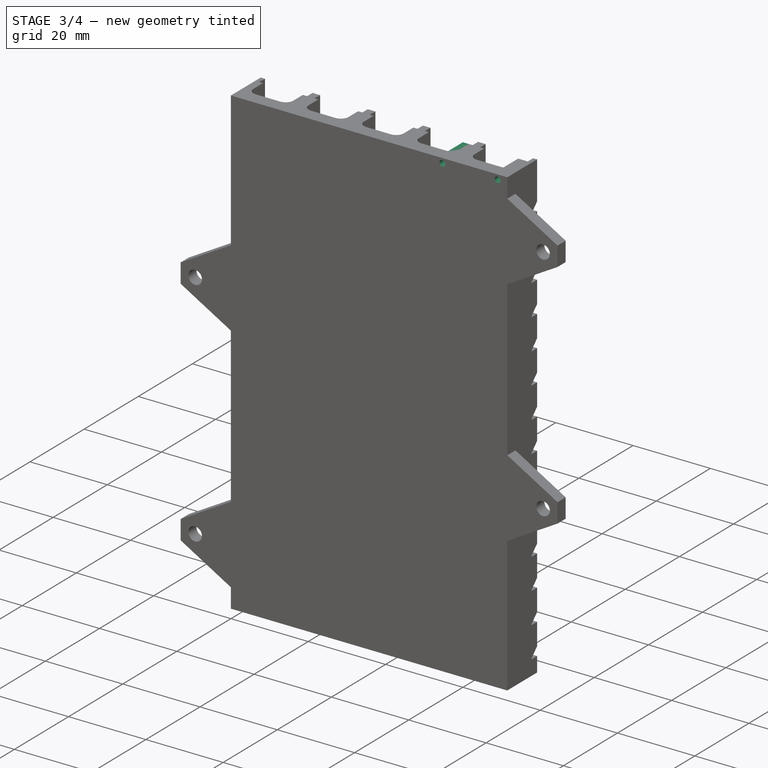
[diagram: stage 3 of 4 — iso view after this stage's code; geometry added in this stage tinted green]
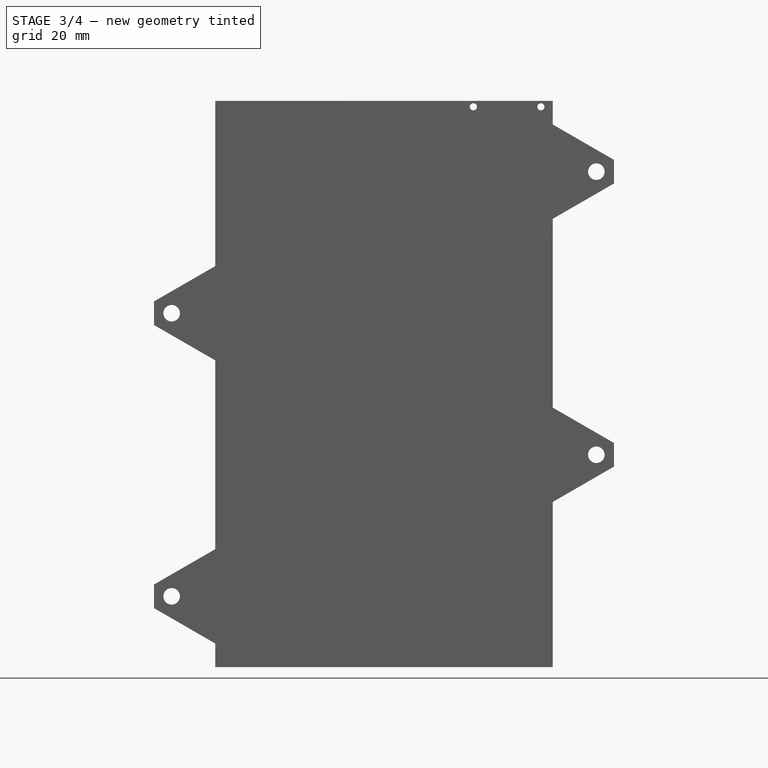
[diagram: stage 3 of 4 — front view after this stage's code; geometry added in this stage tinted green]
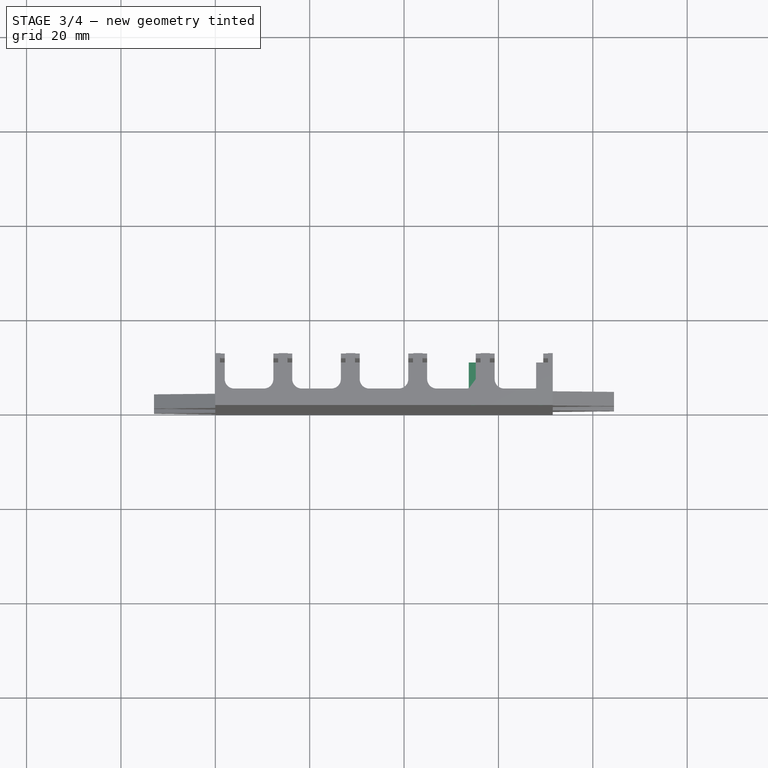
[diagram: stage 3 of 4 — top view after this stage's code; geometry added in this stage tinted green]
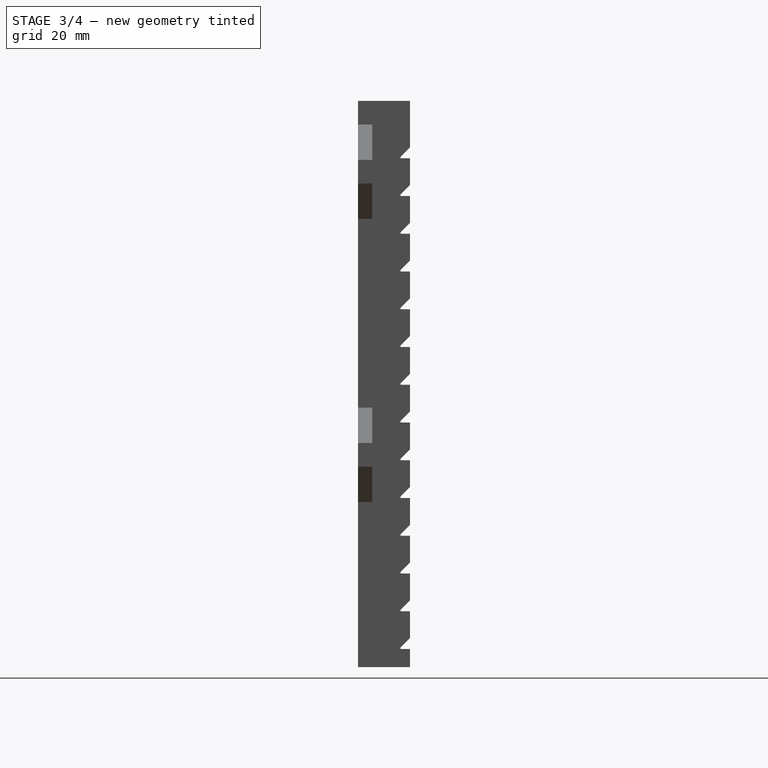
[diagram: stage 3 of 4 — right view after this stage's code; geometry added in this stage tinted green]
FEATURE [PartDesign::Chamfer] Chamfer001
  Angle = 45
  Base = -> Pad002 [Edge1491]
  BaseFeature = -> Pad002
  ChamferType = 0
  FlipDirection = false
  Size = 1.49
  Size2 = 1
  SupportTransform = false
FEATURE [Sketcher::SketchObject] Sketch004
  FullyConstrained = true
  MapMode = 5
  Placement = pos=(0,9,0) rot=(0,0.707107,0.707107;3.14159rad)
  Support = -> [DatumPlane002]
  sketch-geometry (2):
    g0: Circle CenterX=-69 CenterY=118.75 CenterZ=0 NormalX=0 NormalY=0 NormalZ=1 AngleXU=0 Radius=0.75
    g1: GeomPoint X=-70.5 Y=118.75 Z=0
  constraints (5):
    c: Radius(g0) = 0.75
    c: DistanceX(g1,g-1) = 70.5
    c: DistanceX(g1,g0) = 1.5
    c: DistanceY(g-1,g0) = 118.75
    c: Horizontal(g1,g0)
FEATURE [PartDesign::Pocket] Pocket001
  BaseFeature = -> Chamfer001
  Length = 5
  Length2 = 100
  Profile = -> Sketch004
  Type = 1
FEATURE [PartDesign::LinearPattern] LinearPattern
  Direction = -> Sketch004 [H_Axis]
  Length = 14.3
  Occurrences = 2
FEATURE [PartDesign::MultiTransform] MultiTransform
  BaseFeature = -> Pocket001
  Originals = -> [Pad002,Chamfer001,Pocket001]
  Transformations = -> [LinearPattern]
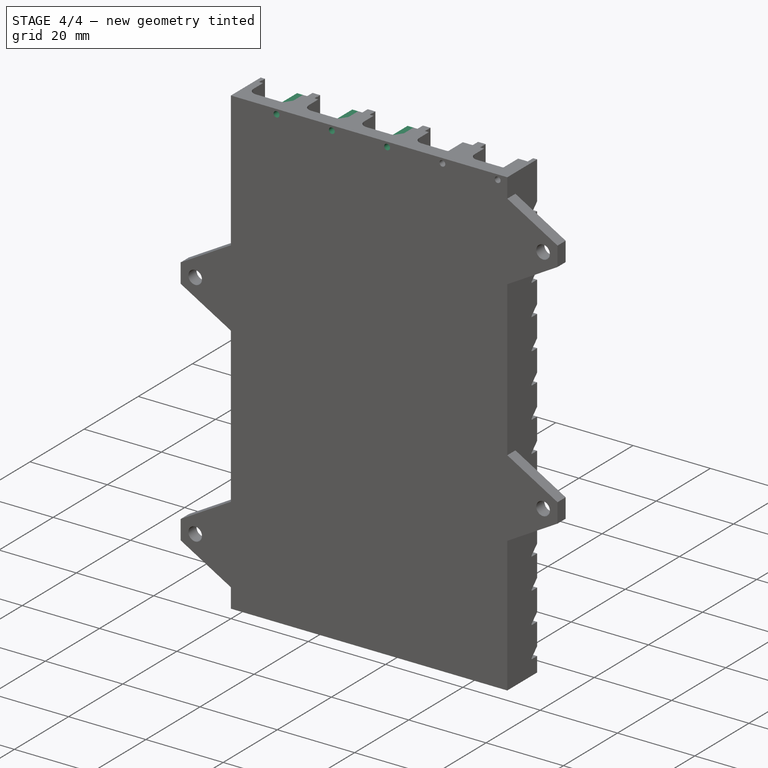
[diagram: stage 4 of 4 — iso view after this stage's code; geometry added in this stage tinted green]
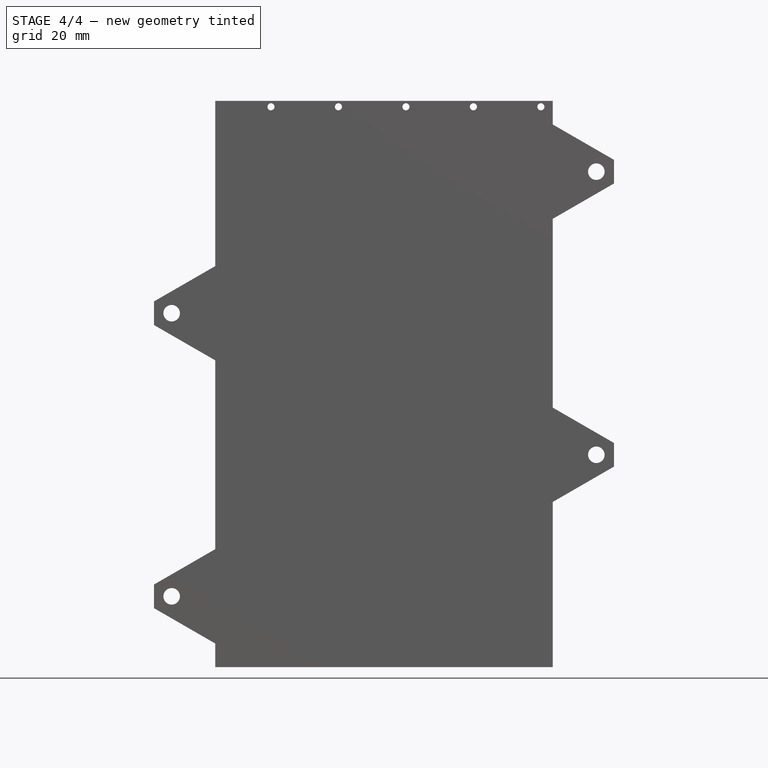
[diagram: stage 4 of 4 — front view after this stage's code; geometry added in this stage tinted green]
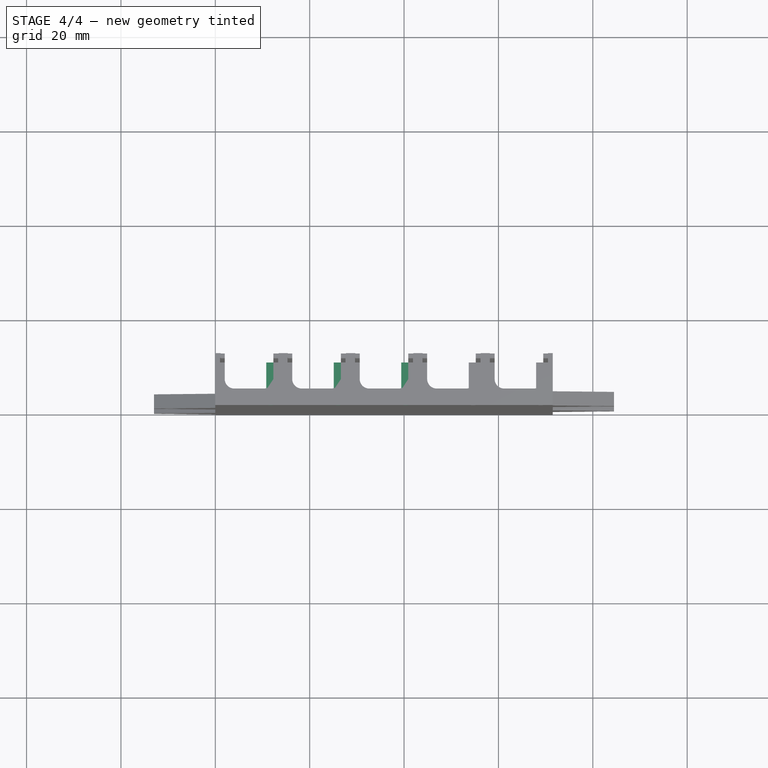
[diagram: stage 4 of 4 — top view after this stage's code; geometry added in this stage tinted green]
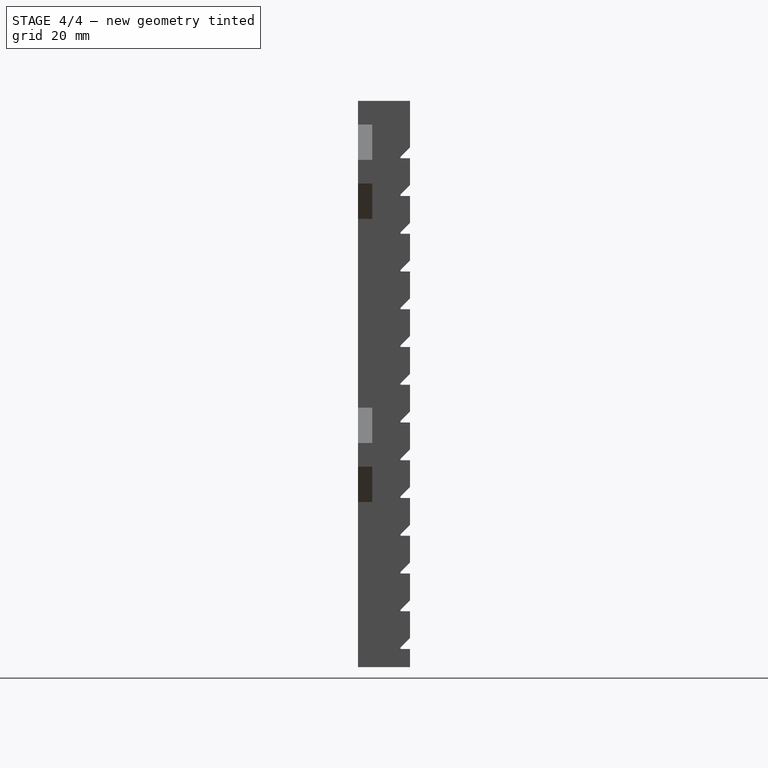
[diagram: stage 4 of 4 — right view after this stage's code; geometry added in this stage tinted green]
FEATURE [PartDesign::MultiTransform] MultiTransform001
FEATURE [PartDesign::LinearPattern] LinearPattern001
  Direction = -> Sketch003 [H_Axis]
  Length = 28.6
  Occurrences = 2
FEATURE [PartDesign::MultiTransform] MultiTransform002
  BaseFeature = -> MultiTransform
  Originals = -> [Pad002,Chamfer001,Pocket001]
  Transformations = -> [LinearPattern001]
FEATURE [PartDesign::LinearPattern] LinearPattern002
  Direction = -> Sketch003 [H_Axis]
  Length = 42.9
  Occurrences = 2
FEATURE [PartDesign::MultiTransform] MultiTransform003
  BaseFeature = -> MultiTransform002
  Originals = -> [Pad002,Chamfer001,Pocket001]
  Transformations = -> [LinearPattern002]
FEATURE [PartDesign::LinearPattern] LinearPattern003
  Direction = -> Sketch003 [H_Axis]
  Length = 57.2
  Occurrences = 2
FEATURE [PartDesign::MultiTransform] MultiTransform004
  BaseFeature = -> MultiTransform003
  Originals = -> [Pad002,Chamfer001,Pocket001]
  Transformations = -> [LinearPattern003]
FEATURE [PartDesign::Plane] DatumPlane  label="PrintPlane"
  Length = 72.598
  MapMode = 5
  Placement = pos=(0,0,120) rot=(0,0,1;0rad)
  ResizeMode = 0
  Support = -> [MultiTransform004]
  Width = 61.0912
FEATURE [PartDesign::Body] Body
  Group = -> [Sketch,Pad,Sketch001,Pad001,Fillet,ShapeString003,DatumPlane,DatumPlane001,Sketch002,Pocket,Chamfer,DatumPlane002,Sketch003,Pad002,Chamfer001,Sketch004,Pocket001,MultiTransform,LinearPattern,MultiTransform001,MultiTransform002,LinearPattern001,MultiTransform003,LinearPattern002,MultiTransform004,LinearPattern003]
  Origin = -> Origin
  Tip = -> Fillet
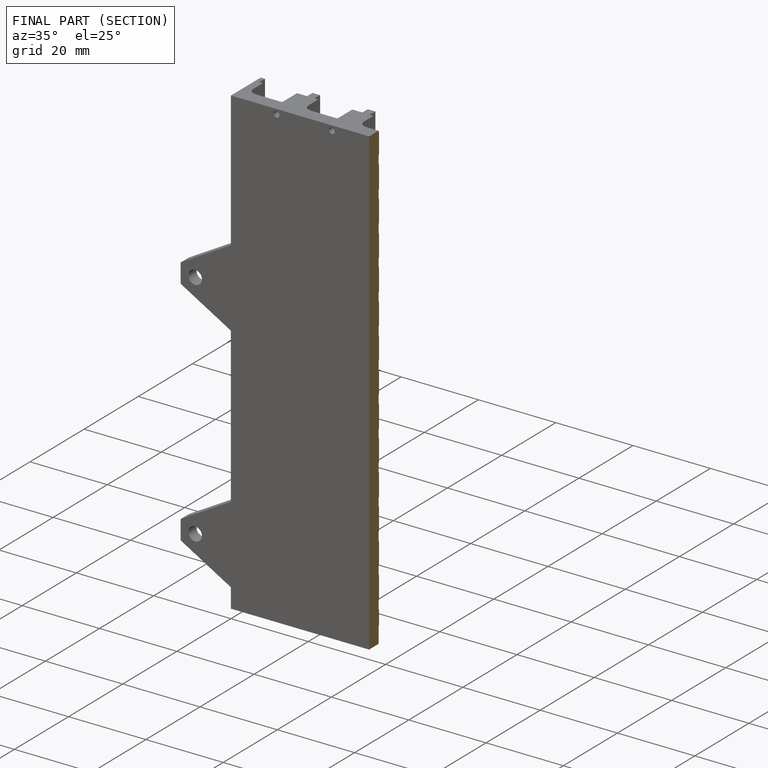
[diagram: finished part — half-section view (interior)]
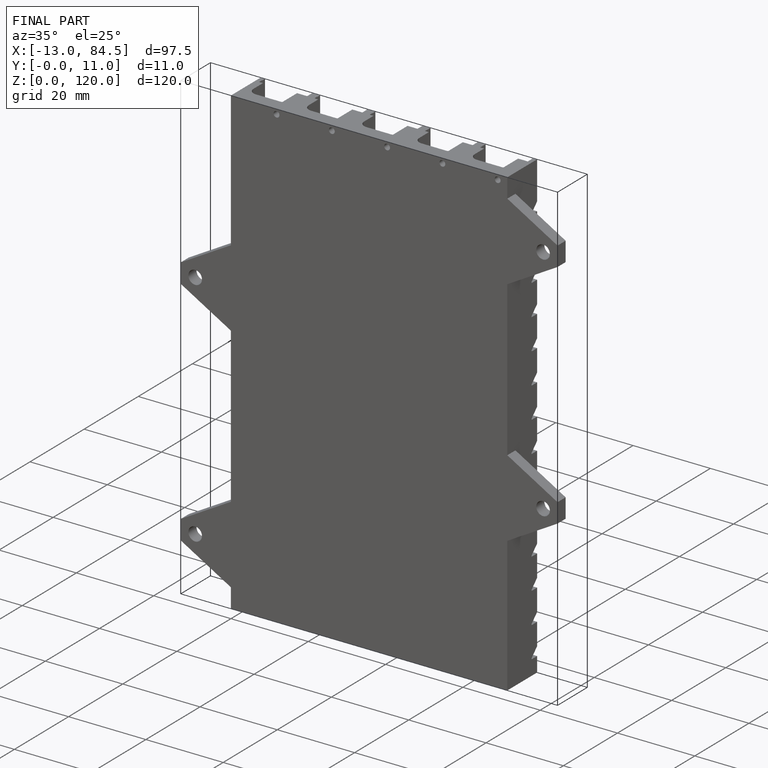
[diagram: finished part — iso view with bounding-box wireframe]
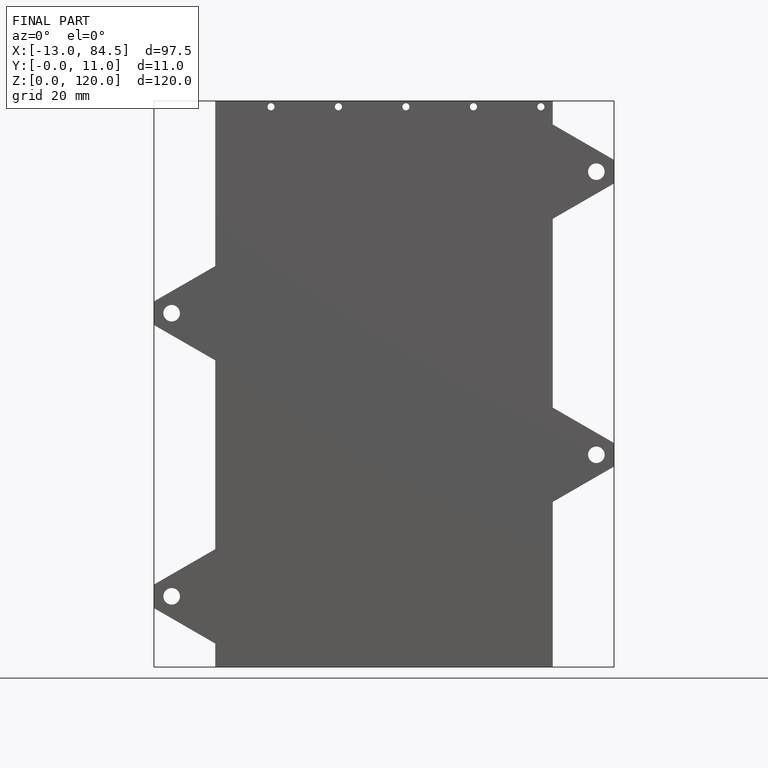
[diagram: finished part — front view with bounding-box wireframe]
